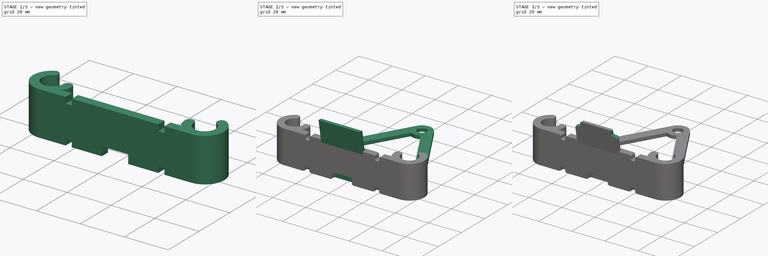
[diagram: build sequence overview — one tinted view per stage of 3, left to right]
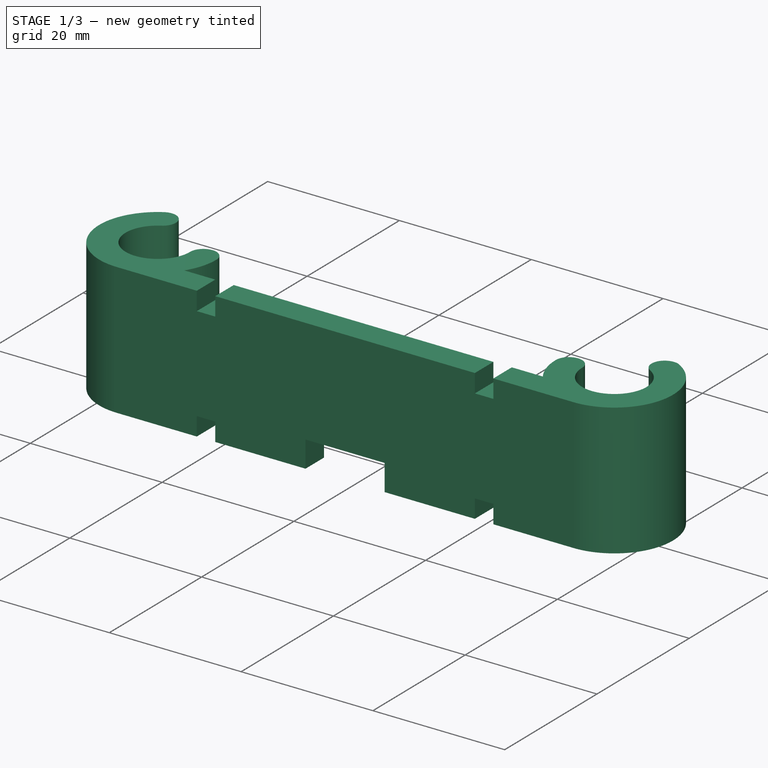
[diagram: stage 1 of 3 — iso view after this stage's code; geometry added in this stage tinted green]
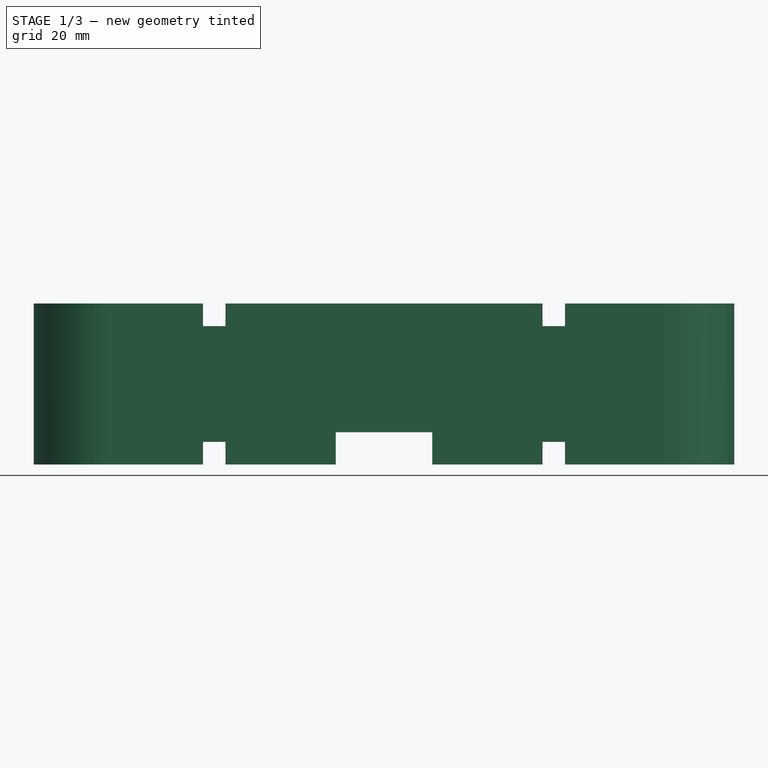
[diagram: stage 1 of 3 — front view after this stage's code; geometry added in this stage tinted green]
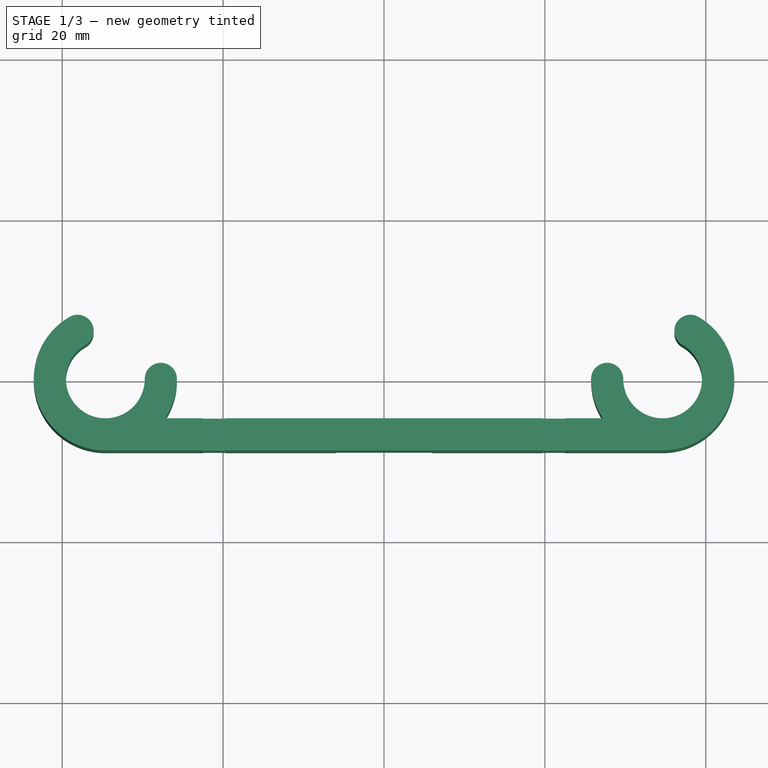
[diagram: stage 1 of 3 — top view after this stage's code; geometry added in this stage tinted green]
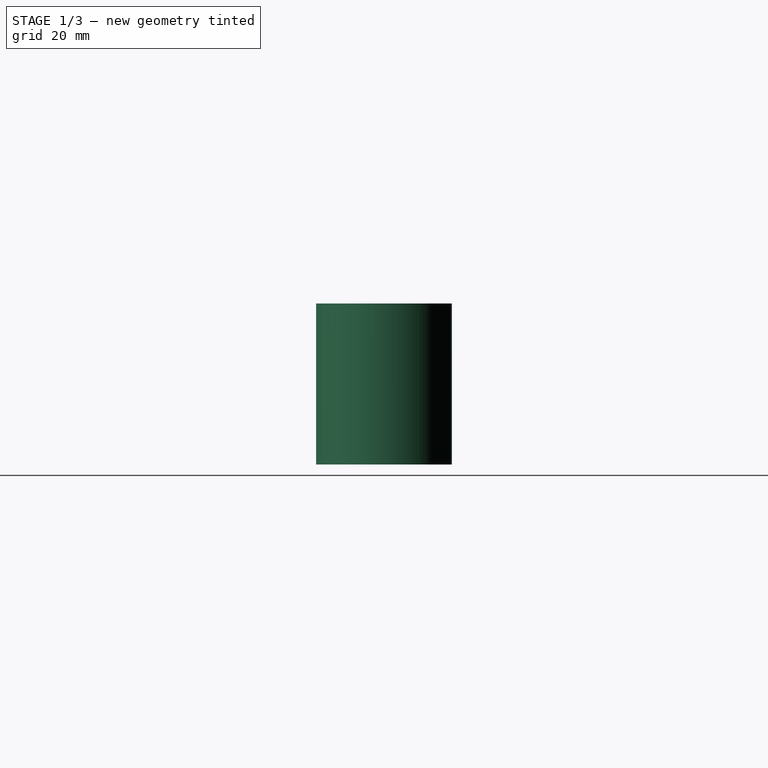
[diagram: stage 1 of 3 — right view after this stage's code; geometry added in this stage tinted green]
FCSTD DOCUMENT  (FreeCAD 0.21R33771 (Git))
Label: sensor_head
License: All rights reserved
LicenseURL: https://en.wikipedia.org/wiki/All_rights_reserved
objects: Sketcher::SketchObject×5, PartDesign::Pad×3, PartDesign::Pocket×2, PartDesign::Fillet×2, PartDesign::Body×2, App::Part×1
note: 21 computed .brp shape members not serialized (recipe doc carries the construction recipe); baked Part::Feature solids carry a one-line shape summary decoded from their .brp

FEATURE [PartDesign::Body] Body
  Group = -> [Sketch,Pad,Sketch001,Pad001,Sketch003,Pocket,Fillet]
  Origin = -> Origin001
  Tip = -> Fillet
FEATURE [Sketcher::SketchObject] Sketch004
  FullyConstrained = true
  MapMode = 5
  Support = -> [XY_Plane002]
  sketch-geometry (18):
    g0: Circle CenterX=0 CenterY=0 CenterZ=0 NormalX=0 NormalY=0 NormalZ=1 AngleXU=0 Radius=40
    g1: ArcOfCircle CenterX=-34.641 CenterY=-20 CenterZ=0 NormalX=0 NormalY=0 NormalZ=1 AngleXU=0 Radius=4.9 StartAngle=2.0944 EndAngle=6.28319
    g2: ArcOfCircle CenterX=34.641 CenterY=-20 CenterZ=0 NormalX=0 NormalY=0 NormalZ=1 AngleXU=0 Radius=4.9 StartAngle=3.14159 EndAngle=7.33038
    g3: ArcOfCircle CenterX=34.641 CenterY=-20 CenterZ=0 NormalX=0 NormalY=0 NormalZ=1 AngleXU=0 Radius=8.9 StartAngle=3.14159 EndAngle=3.72463
    g4: ArcOfCircle CenterX=-34.641 CenterY=-20 CenterZ=0 NormalX=0 NormalY=0 NormalZ=1 AngleXU=0 Radius=8.9 StartAngle=2.0944 EndAngle=4.71239
    g5: LineSegment StartX=-34.641 StartY=-20 StartZ=0 EndX=-44.641 EndY=-2.67949 EndZ=0
    g6: LineSegment StartX=34.641 StartY=-20 StartZ=0 EndX=44.641 EndY=-2.67949 EndZ=0
    g7: LineSegment StartX=-34.641 StartY=-20 StartZ=0 EndX=34.641 EndY=-20 EndZ=0
    g8: LineSegment StartX=34.641 StartY=-20 StartZ=0 EndX=0 EndY=40 EndZ=0
    g9: LineSegment StartX=0 StartY=40 StartZ=0 EndX=-34.641 EndY=-20 EndZ=0
    g10: ArcOfCircle CenterX=38.091 CenterY=-14.0244 CenterZ=0 NormalX=0 NormalY=0 NormalZ=1 AngleXU=0 Radius=2 StartAngle=1.0472 EndAngle=4.18879
    g11: ArcOfCircle CenterX=27.741 CenterY=-20 CenterZ=0 NormalX=0 NormalY=0 NormalZ=1 AngleXU=0 Radius=2 StartAngle=7e-16 EndAngle=3.14159
    g12: ArcOfCircle CenterX=-27.741 CenterY=-20 CenterZ=0 NormalX=0 NormalY=0 NormalZ=1 AngleXU=0 Radius=2 StartAngle=-9e-16 EndAngle=3.14159
    g13: ArcOfCircle CenterX=-38.091 CenterY=-14.0244 CenterZ=0 NormalX=0 NormalY=0 NormalZ=1 AngleXU=0 Radius=2 StartAngle=5.23599 EndAngle=8.37758
    g14: LineSegment StartX=-34.641 StartY=-28.9 StartZ=0 EndX=34.641 EndY=-28.9 EndZ=0
    g15: LineSegment StartX=-27.2113 StartY=-24.9 StartZ=0 EndX=27.2113 EndY=-24.9 EndZ=0
    g16: ArcOfCircle CenterX=-34.641 CenterY=-20 CenterZ=0 NormalX=0 NormalY=0 NormalZ=1 AngleXU=0 Radius=8.9 StartAngle=5.70015 EndAngle=6.28319
    g17: ArcOfCircle CenterX=34.641 CenterY=-20 CenterZ=0 NormalX=0 NormalY=0 NormalZ=1 AngleXU=0 Radius=8.9 StartAngle=4.71239 EndAngle=7.33038
  constraints (62):
    c: Coincident(g0,g-1)
    c: Diameter(g0) = 80
    c: PointOnObject(g2,g0)
    c: Diameter(g1) = 9.8
    c: Diameter(g2) = 9.8
    c: Diameter(g3) = 17.8
    c: Diameter(g4) = 17.8
    c: Coincident(g7,g1)
    c: Coincident(g7,g2)
    c: Horizontal(g7)
    c: Coincident(g8,g2)
    c: PointOnObject(g8,g0)
    c: Coincident(g9,g8)
    c: Coincident(g9,g1)
    c: PointOnObject(g8,g-2)
    c: Angle(g9,g8) = 1.0472
    c: PointOnObject(g1,g0)
    c: Coincident(g1,g4)
    c: Coincident(g3,g2)
    c: Angle(g6,g7) = 2.0944
    c: Angle(g7,g5) = 2.0944
    c: Coincident(g2,g6)
    c: Coincident(g5,g1)
    c: Distance(g5) = 20
    c: Distance(g6) = 20
    c: PointOnObject(g10,g6)
    c: PointOnObject(g11,g7)
    c: PointOnObject(g12,g7)
    c: PointOnObject(g13,g5)
    c: Coincident(g13,g4)
    c: Coincident(g13,g1)
    c: PointOnObject(g4,g5)
    c: Coincident(g12,g1)
    c: PointOnObject(g1,g7)
    c: Coincident(g16,g12)
    c: PointOnObject(g16,g7)
    c: PointOnObject(g1,g5)
    c: PointOnObject(g2,g7)
    c: PointOnObject(g2,g6)
    c: PointOnObject(g17,g6)
    c: PointOnObject(g3,g7)
    c: PointOnObject(g11,g7)
    c: PointOnObject(g11,g7)
    c: PointOnObject(g10,g6)
    c: PointOnObject(g10,g6)
    c: Tangent(g10,g2)
    c: Tangent(g10,g3)
    c: Tangent(g11,g3)
    c: Tangent(g11,g2)
    c: PointOnObject(g14,g3)
    c: Horizontal(g14)
    c: Tangent(g14,g3)
    c: Horizontal(g15)
    c: DistanceY(g14,g15) = 4
    c: Equal(g4,g16)
    c: Coincident(g16,g15)
    c: Coincident(g4,g16)
    c: Equal(g3,g17)
    c: Coincident(g3,g15)
    c: Coincident(g3,g17)
    c: Coincident(g4,g14)
    c: PointOnObject(g17,g14)
FEATURE [PartDesign::Pad] Pad002
  Direction = (0,0,1)
  Length = 20
  Length2 = 10
  Profile = -> Sketch004
  ReferenceAxis = -> Sketch004 [N_Axis]
  Type = 0
FEATURE [Sketcher::SketchObject] Sketch005
  ExternalGeometry = -> [Pad002]
  FullyConstrained = true
  MapMode = 5
  Placement = pos=(0,-28.9,0) rot=(1,0,0;1.5708rad)
  Support = -> [Pad002]
  sketch-geometry (30):
    g0: LineSegment StartX=-22.5 StartY=20 StartZ=0 EndX=22.5 EndY=20 EndZ=0
    g1: LineSegment StartX=22.5 StartY=20 StartZ=0 EndX=22.5 EndY=0 EndZ=0
    g2: LineSegment StartX=22.5 StartY=0 StartZ=0 EndX=-22.5 EndY=0 EndZ=0
    g3: LineSegment StartX=-22.5 StartY=0 StartZ=0 EndX=-22.5 EndY=20 EndZ=0
    g4: LineSegment StartX=-34.641 StartY=20 StartZ=0 EndX=34.641 EndY=0 EndZ=0
    g5: LineSegment StartX=-22.5 StartY=20 StartZ=0 EndX=22.5 EndY=0 EndZ=0
    g6: LineSegment StartX=34.641 StartY=20 StartZ=0 EndX=-34.641 EndY=0 EndZ=0
    g7: GeomPoint X=1.89012e-05 Y=10 Z=0
    g8: LineSegment StartX=-22.5 StartY=0 StartZ=0 EndX=22.5 EndY=20 EndZ=0
    g9: GeomPoint X=1.89012e-05 Y=10 Z=0
    g10: LineSegment StartX=-22.5 StartY=0 StartZ=0 EndX=-19.7 EndY=0 EndZ=0
    g11: LineSegment StartX=-19.7 StartY=0 StartZ=0 EndX=-19.7 EndY=2.8 EndZ=0
    g12: LineSegment StartX=-19.7 StartY=2.8 StartZ=0 EndX=-22.5 EndY=2.8 EndZ=0
    g13: LineSegment StartX=-22.5 StartY=2.8 StartZ=0 EndX=-22.5 EndY=0 EndZ=0
    g14: LineSegment StartX=22.5 StartY=0 StartZ=0 EndX=19.7 EndY=0 EndZ=0
    g15: LineSegment StartX=19.7 StartY=0 StartZ=0 EndX=19.7 EndY=2.8 EndZ=0
    g16: LineSegment StartX=19.7 StartY=2.8 StartZ=0 EndX=22.5 EndY=2.8 EndZ=0
    g17: LineSegment StartX=22.5 StartY=2.8 StartZ=0 EndX=22.5 EndY=0 EndZ=0
    g18: LineSegment StartX=22.5 StartY=20 StartZ=0 EndX=19.7 EndY=20 EndZ=0
    g19: LineSegment StartX=19.7 StartY=20 StartZ=0 EndX=19.7 EndY=17.2 EndZ=0
    g20: LineSegment StartX=19.7 StartY=17.2 StartZ=0 EndX=22.5 EndY=17.2 EndZ=0
    g21: LineSegment StartX=22.5 StartY=17.2 StartZ=0 EndX=22.5 EndY=20 EndZ=0
    g22: LineSegment StartX=-22.5 StartY=20 StartZ=0 EndX=-19.7 EndY=20 EndZ=0
    g23: LineSegment StartX=-19.7 StartY=20 StartZ=0 EndX=-19.7 EndY=17.2 EndZ=0
    g24: LineSegment StartX=-19.7 StartY=17.2 StartZ=0 EndX=-22.5 EndY=17.2 EndZ=0
    g25: LineSegment StartX=-22.5 StartY=17.2 StartZ=0 EndX=-22.5 EndY=20 EndZ=0
    g26: LineSegment StartX=-5.99998 StartY=0 StartZ=0 EndX=6.00002 EndY=0 EndZ=0
    g27: LineSegment StartX=6.00002 StartY=0 StartZ=0 EndX=6.00002 EndY=4 EndZ=0
    g28: LineSegment StartX=6.00002 StartY=4 StartZ=0 EndX=-5.99998 EndY=4 EndZ=0
    g29: LineSegment StartX=-5.99998 StartY=4 StartZ=0 EndX=-5.99998 EndY=0 EndZ=0
  constraints (80):
    c: Coincident(g0,g1)
    c: Coincident(g1,g2)
    c: Coincident(g2,g3)
    c: Coincident(g3,g0)
    c: Horizontal(g0)
    c: Horizontal(g2)
    c: Vertical(g1)
    c: Vertical(g3)
    c: PointOnObject(g0,g-3)
    c: PointOnObject(g1,g-4)
    c: DistanceX(g0,g0) = 45
    c: Coincident(g4,g-3)
    c: Coincident(g4,g-4)
    c: Coincident(g5,g0)
    c: Coincident(g5,g1)
    c: Coincident(g6,g-3)
    c: Coincident(g6,g-4)
    c: PointOnObject(g7,g4)
    c: PointOnObject(g7,g6)
    c: Coincident(g8,g2)
    c: Coincident(g8,g0)
    c: PointOnObject(g9,g8)
    c: PointOnObject(g9,g5)
    c: Vertical(g9,g7)
    c: Coincident(g10,g11)
    c: Coincident(g11,g12)
    c: Coincident(g12,g13)
    c: Coincident(g13,g10)
    c: Horizontal(g10)
    c: Horizontal(g12)
    c: Vertical(g11)
    c: Vertical(g13)
    c: Coincident(g10,g2)
    c: Coincident(g14,g15)
    c: Coincident(g15,g16)
    c: Coincident(g16,g17)
    c: Coincident(g17,g14)
    c: Horizontal(g14)
    c: Horizontal(g16)
    c: Vertical(g15)
    c: Vertical(g17)
    c: Coincident(g14,g1)
    c: Coincident(g18,g19)
    c: Coincident(g19,g20)
    c: Coincident(g20,g21)
    c: Coincident(g21,g18)
    c: Horizontal(g18)
    c: Horizontal(g20)
    c: Vertical(g19)
    c: Vertical(g21)
    c: Coincident(g18,g0)
    c: Coincident(g22,g23)
    c: Coincident(g23,g24)
    c: Coincident(g24,g25)
    c: Coincident(g25,g22)
    c: Horizontal(g22)
    c: Horizontal(g24)
    c: Vertical(g23)
    c: Vertical(g25)
    c: Coincident(g22,g0)
    c: Coincident(g26,g27)
    c: Coincident(g27,g28)
    c: Coincident(g28,g29)
    c: Coincident(g29,g26)
    c: Horizontal(g26)
    c: Horizontal(g28)
    c: Vertical(g27)
    c: Vertical(g29)
    c: PointOnObject(g26,g2)
    c: Vertical(g11,g23)
    c: Vertical(g19,g15)
    c: Horizontal(g23,g19)
    c: Horizontal(g15,g11)
    c: DistanceX(g12,g12) = 2.8
    c: DistanceX(g20,g20) = 2.8
    c: DistanceY(g19,g19) = 2.8
    c: DistanceY(g15,g15) = 2.8
    c: DistanceX(g28,g28) = 12
    c: DistanceX(g26,g14) = 16.5
    c: DistanceY(g27,g27) = 4
FEATURE [PartDesign::Pocket] Pocket001
  BaseFeature = -> Pad002
  Direction = (0,1,-2e-16)
  Length = 5
  Length2 = 5
  Profile = -> Sketch005
  ReferenceAxis = -> Sketch005 [N_Axis]
  Type = 2
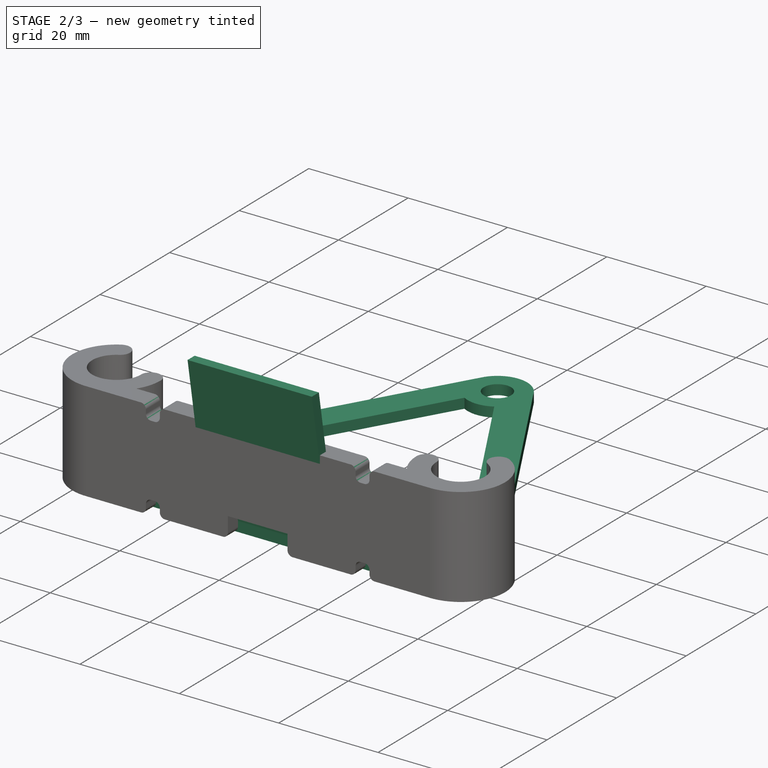
[diagram: stage 2 of 3 — iso view after this stage's code; geometry added in this stage tinted green]
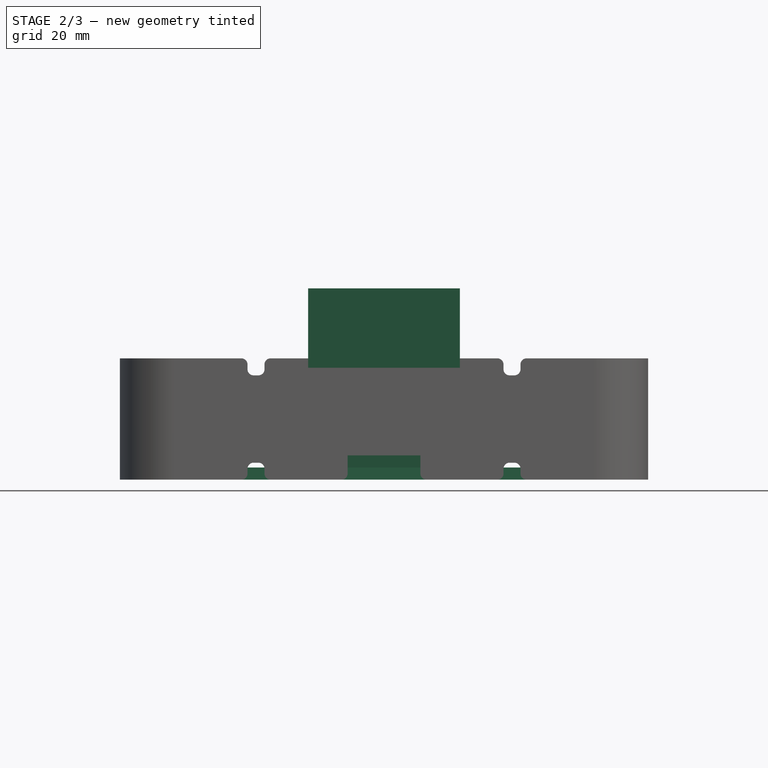
[diagram: stage 2 of 3 — front view after this stage's code; geometry added in this stage tinted green]
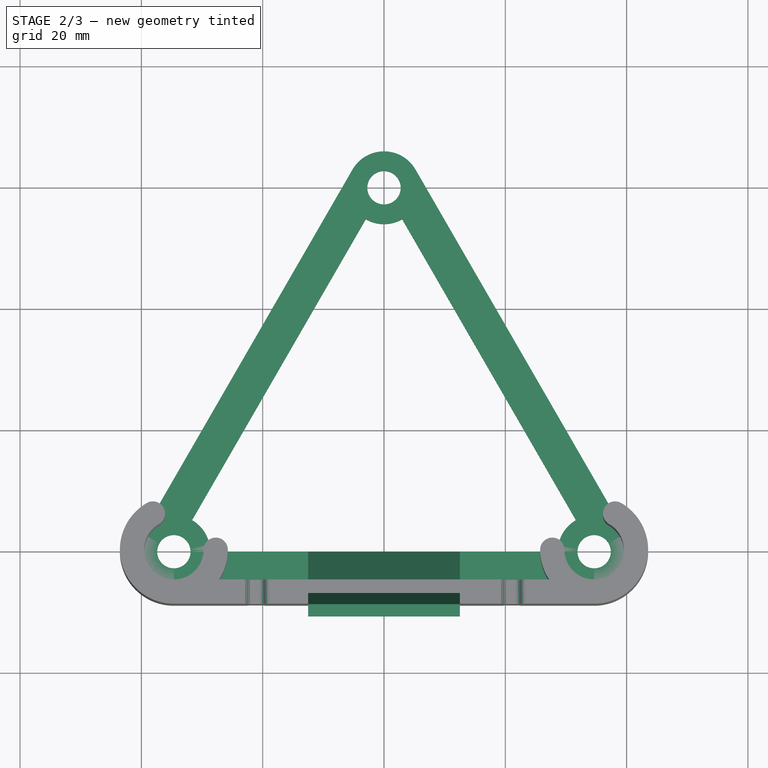
[diagram: stage 2 of 3 — top view after this stage's code; geometry added in this stage tinted green]
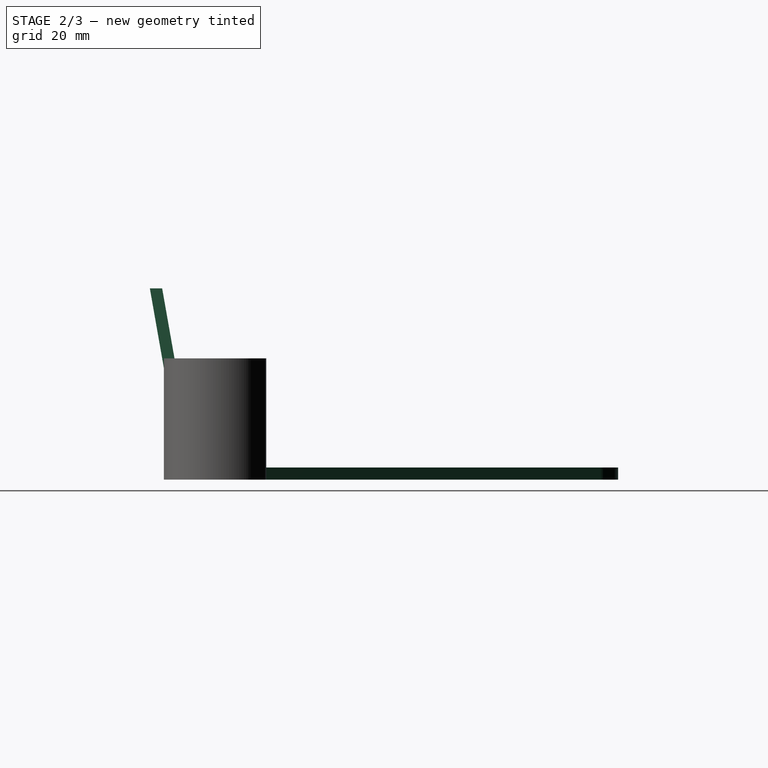
[diagram: stage 2 of 3 — right view after this stage's code; geometry added in this stage tinted green]
FEATURE [Sketcher::SketchObject] Sketch
  FullyConstrained = true
  MapMode = 5
  Support = -> [XY_Plane001]
  sketch-geometry (19):
    g0: Circle CenterX=0 CenterY=0 CenterZ=0 NormalX=0 NormalY=0 NormalZ=1 AngleXU=0 Radius=40
    g1: LineSegment StartX=0 StartY=40 StartZ=0 EndX=-34.641 EndY=-20 EndZ=0
    g2: LineSegment StartX=-34.641 StartY=-20 StartZ=0 EndX=34.641 EndY=-20 EndZ=0
    g3: LineSegment StartX=34.641 StartY=-20 StartZ=0 EndX=0 EndY=40 EndZ=0
    g4: Circle CenterX=0 CenterY=40 CenterZ=0 NormalX=0 NormalY=0 NormalZ=1 AngleXU=0 Radius=2.75
    g5: Circle CenterX=-34.641 CenterY=-20 CenterZ=0 NormalX=0 NormalY=0 NormalZ=1 AngleXU=0 Radius=2.75
    g6: Circle CenterX=34.641 CenterY=-20 CenterZ=0 NormalX=0 NormalY=0 NormalZ=1 AngleXU=0 Radius=2.75
    g7: ArcOfCircle CenterX=0 CenterY=40 CenterZ=0 NormalX=0 NormalY=0 NormalZ=1 AngleXU=0 Radius=6 StartAngle=0.523599 EndAngle=2.61799
    g8: ArcOfCircle CenterX=-34.641 CenterY=-20 CenterZ=0 NormalX=0 NormalY=0 NormalZ=1 AngleXU=0 Radius=6 StartAngle=0 EndAngle=1.0472
    g9: ArcOfCircle CenterX=34.641 CenterY=-20 CenterZ=0 NormalX=0 NormalY=0 NormalZ=1 AngleXU=0 Radius=6 StartAngle=2.0944 EndAngle=3.14159
    g10: LineSegment StartX=-39.8372 StartY=-17 StartZ=0 EndX=-5.19615 EndY=43 EndZ=0
    g11: LineSegment StartX=5.19615 StartY=43 StartZ=0 EndX=39.8372 EndY=-17 EndZ=0
    g12: LineSegment StartX=34.641 StartY=-26 StartZ=0 EndX=-34.641 EndY=-26 EndZ=0
    g13: LineSegment StartX=-31.641 StartY=-14.8038 StartZ=0 EndX=-3 EndY=34.8038 EndZ=0
    g14: LineSegment StartX=3 StartY=34.8038 StartZ=0 EndX=31.641 EndY=-14.8038 EndZ=0
    g15: LineSegment StartX=28.641 StartY=-20 StartZ=0 EndX=-28.641 EndY=-20 EndZ=0
    g16: ArcOfCircle CenterX=-34.641 CenterY=-20 CenterZ=0 NormalX=0 NormalY=0 NormalZ=1 AngleXU=0 Radius=6 StartAngle=2.61799 EndAngle=4.71239
    g17: ArcOfCircle CenterX=0 CenterY=40 CenterZ=0 NormalX=0 NormalY=0 NormalZ=1 AngleXU=0 Radius=6 StartAngle=4.18879 EndAngle=5.23599
    g18: ArcOfCircle CenterX=34.641 CenterY=-20 CenterZ=0 NormalX=0 NormalY=0 NormalZ=1 AngleXU=0 Radius=6 StartAngle=4.71239 EndAngle=6.80678
  constraints (49):
    c: Coincident(g0,g-1)
    c: Diameter(g0) = 80
    c: PointOnObject(g1,g0)
    c: PointOnObject(g1,g0)
    c: Coincident(g2,g1)
    c: PointOnObject(g2,g0)
    c: Horizontal(g2)
    c: Coincident(g3,g2)
    c: Coincident(g3,g1)
    c: PointOnObject(g1,g-2)
    c: Angle(g1,g3) = 1.0472
    c: Coincident(g4,g1)
    c: Coincident(g5,g1)
    c: Coincident(g6,g2)
    c: Diameter(g4) = 5.5
    c: Diameter(g6) = 5.5
    c: Diameter(g5) = 5.5
    c: Coincident(g7,g4)
    c: Diameter(g7) = 12
    c: Coincident(g8,g5)
    c: Coincident(g9,g6)
    c: Diameter(g8) = 12
    c: Diameter(g9) = 12
    c: PointOnObject(g13,g1)
    c: PointOnObject(g14,g3)
    c: PointOnObject(g15,g8)
    c: Horizontal(g15)
    c: PointOnObject(g15,g2)
    c: PointOnObject(g14,g3)
    c: PointOnObject(g13,g7)
    c: PointOnObject(g13,g1)
    c: PointOnObject(g8,g2)
    c: Equal(g8,g16)
    c: Tangent(g16,g10) = 1.5708
    c: Coincident(g8,g16)
    c: Coincident(g8,g13)
    c: Tangent(g16,g12) = 1.5708
    c: Tangent(g7,g11) = 1.5708
    c: Coincident(g17,g14)
    c: Equal(g7,g17)
    c: Tangent(g7,g10) = 1.5708
    c: Coincident(g7,g17)
    c: PointOnObject(g17,g1)
    c: Equal(g9,g18)
    c: Coincident(g9,g15)
    c: Coincident(g9,g18)
    c: Coincident(g9,g14)
    c: Tangent(g18,g11) = 1.5708
    c: Tangent(g12,g18) = 1.5708
FEATURE [PartDesign::Pad] Pad
  Direction = (0,0,1)
  Length = 2
  Length2 = 10
  Profile = -> Sketch
  ReferenceAxis = -> Sketch [N_Axis]
  Type = 0
FEATURE [Sketcher::SketchObject] Sketch001
  ExternalGeometry = -> [Pad]
  FullyConstrained = true
  MapMode = 5
  Placement = pos=(0,0,0) rot=(0.57735,0.57735,0.57735;2.0944rad)
  Support = -> [YZ_Plane001]
  sketch-geometry (7):
    g0: LineSegment StartX=-26 StartY=2 StartZ=0 EndX=-31.2094 EndY=31.5442 EndZ=0
    g1: LineSegment StartX=-26 StartY=2 StartZ=0 EndX=-20 EndY=2 EndZ=0
    g2: LineSegment StartX=-31.2094 StartY=31.5442 StartZ=0 EndX=-29.1786 EndY=31.5442 EndZ=0
    g3: LineSegment StartX=-29.1786 StartY=31.5442 StartZ=0 EndX=-23.9691 EndY=2 EndZ=0
    g4: LineSegment StartX=-29.1786 StartY=31.5442 StartZ=0 EndX=-24.8188 EndY=6.81884 EndZ=0
    g5: LineSegment StartX=-24.8188 StartY=6.81884 StartZ=0 EndX=-20 EndY=2 EndZ=0
    g6: LineSegment StartX=-26 StartY=2 StartZ=0 EndX=-20 EndY=2 EndZ=0
  constraints (18):
    c: Coincident(g0,g-4)
    c: Coincident(g1,g0)
    c: Coincident(g1,g-3)
    c: Coincident(g2,g0)
    c: Horizontal(g2)
    c: Coincident(g3,g2)
    c: PointOnObject(g3,g1)
    c: Coincident(g4,g2)
    c: PointOnObject(g4,g3)
    c: Coincident(g5,g4)
    c: Coincident(g5,g1)
    c: Parallel(g0,g3)
    c: Angle(g1,g0) = 1.74533
    c: Distance(g2,g0) = 2
    c: Angle(g5,g1) = 0.785398
    c: Distance(g0) = 30
    c: Coincident(g6,g0)
    c: Coincident(g6,g5)
FEATURE [PartDesign::Pad] Pad001
  BaseFeature = -> Pad
  Direction = (1,-2e-16,3e-16)
  Length = 12.5
  Length2 = 12.5
  Profile = -> Sketch001
  ReferenceAxis = -> Sketch001 [N_Axis]
  Type = 4
FEATURE [PartDesign::Fillet] Fillet001
  Base = -> Pocket001 [Edge66,Edge19,Edge93,Edge92,Edge89,Edge84,Edge91,Edge90,Edge67,Edge68,Edge65,Edge14,Edge74,Edge73,Edge75,Edge76,Edge72,Edge69]
  BaseFeature = -> Pocket001
  Radius = 1
  SupportTransform = false
  UseAllEdges = false
FEATURE [PartDesign::Body] Body001
  Group = -> [Sketch004,Pad002,Sketch005,Pocket001,Fillet001]
  Origin = -> Origin002
  Tip = -> Fillet001
FEATURE [App::Part] Part
  Group = -> [Body,Body001]
  Origin = -> Origin
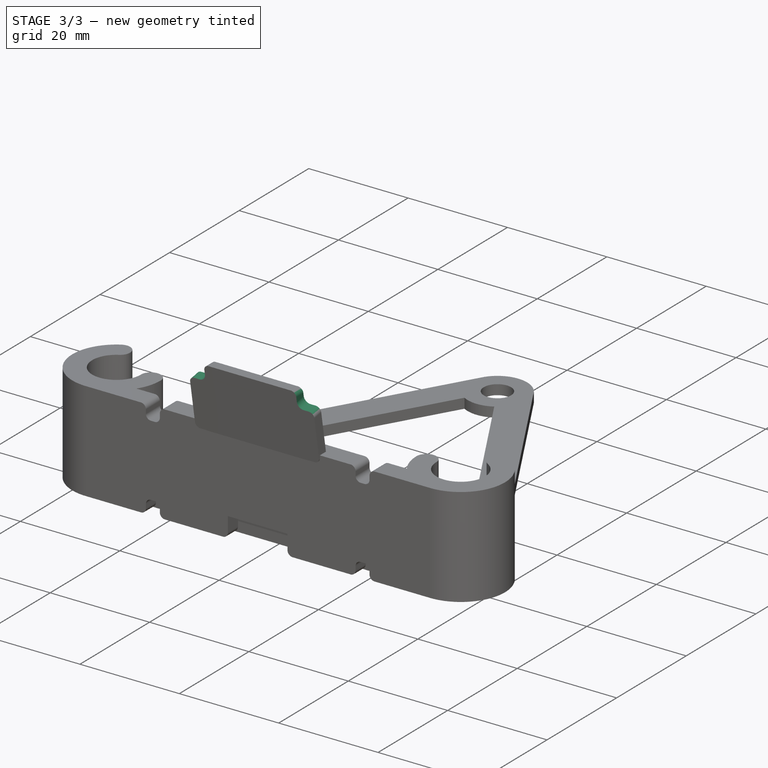
[diagram: stage 3 of 3 — iso view after this stage's code; geometry added in this stage tinted green]
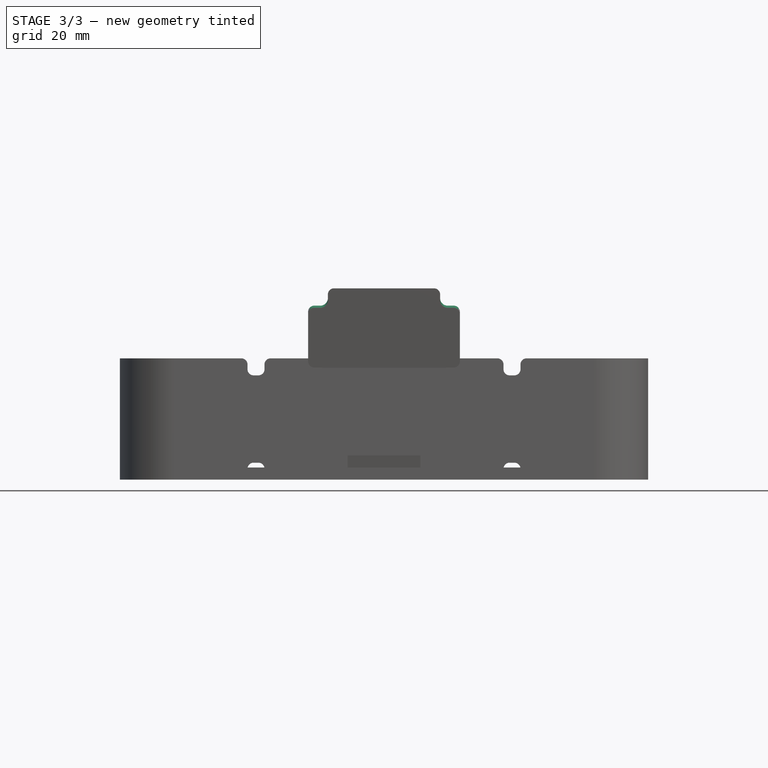
[diagram: stage 3 of 3 — front view after this stage's code; geometry added in this stage tinted green]
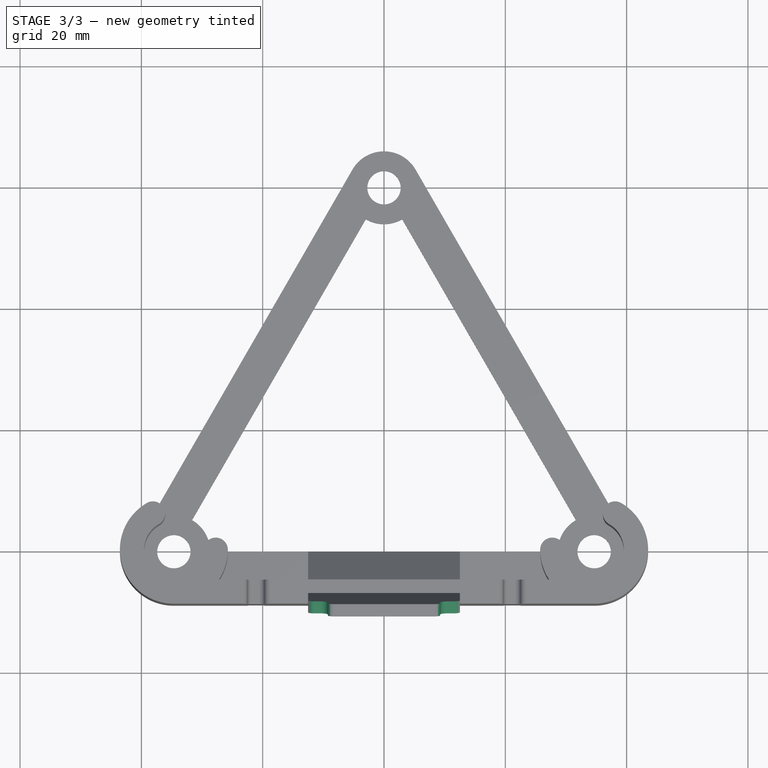
[diagram: stage 3 of 3 — top view after this stage's code; geometry added in this stage tinted green]
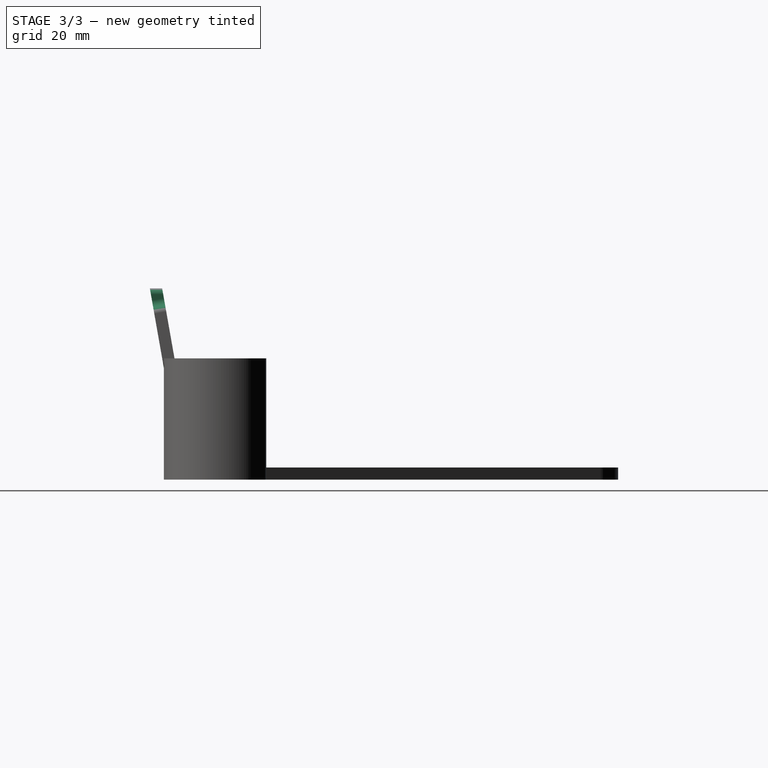
[diagram: stage 3 of 3 — right view after this stage's code; geometry added in this stage tinted green]
FEATURE [Sketcher::SketchObject] Sketch003
  ExternalGeometry = -> [Pad001]
  FullyConstrained = true
  MapMode = 5
  Placement = pos=(-4.3e-15,-24.874,-4.38595) rot=(1,0,0;1.74533rad)
  Support = -> [Pad001]
  sketch-geometry (18):
    g0: ArcOfCircle CenterX=-10.5 CenterY=34.4845 CenterZ=0 NormalX=0 NormalY=0 NormalZ=1 AngleXU=0 Radius=1.25 StartAngle=4.71239 EndAngle=6.28319
    g1: ArcOfCircle CenterX=10.5 CenterY=34.4845 CenterZ=0 NormalX=0 NormalY=0 NormalZ=1 AngleXU=0 Radius=1.25 StartAngle=3.14159 EndAngle=4.71239
    g2: ArcOfCircle CenterX=10.5 CenterY=21.9845 CenterZ=0 NormalX=0 NormalY=0 NormalZ=1 AngleXU=0 Radius=1.25 StartAngle=1.5708 EndAngle=4.71239
    g3: ArcOfCircle CenterX=-10.5 CenterY=21.9845 CenterZ=0 NormalX=0 NormalY=0 NormalZ=1 AngleXU=0 Radius=1.25 StartAngle=4.71239 EndAngle=7.85398
    g4: LineSegment StartX=-12.5 StartY=36.4845 StartZ=0 EndX=-9.25 EndY=36.4845 EndZ=0
    g5: LineSegment StartX=-9.25 StartY=36.4845 StartZ=0 EndX=-9.25 EndY=34.4845 EndZ=0
    g6: LineSegment StartX=-10.5 StartY=33.2345 StartZ=0 EndX=-12.5 EndY=33.2345 EndZ=0
    g7: LineSegment StartX=-12.5 StartY=33.2345 StartZ=0 EndX=-12.5 EndY=36.4845 EndZ=0
    g8: LineSegment StartX=12.5 StartY=36.4845 StartZ=0 EndX=9.25 EndY=36.4845 EndZ=0
    g9: LineSegment StartX=9.25 StartY=36.4845 StartZ=0 EndX=9.25 EndY=34.4845 EndZ=0
    g10: LineSegment StartX=10.5 StartY=33.2345 StartZ=0 EndX=12.5 EndY=33.2345 EndZ=0
    g11: LineSegment StartX=12.5 StartY=33.2345 StartZ=0 EndX=12.5 EndY=36.4845 EndZ=0
    g12: LineSegment StartX=10.5 StartY=23.2345 StartZ=0 EndX=12.5 EndY=23.2345 EndZ=0
    g13: LineSegment StartX=10.5 StartY=20.7345 StartZ=0 EndX=12.5 EndY=20.7345 EndZ=0
    g14: LineSegment StartX=12.5 StartY=23.2345 StartZ=0 EndX=12.5 EndY=20.7345 EndZ=0
    g15: LineSegment StartX=-10.5 StartY=23.2345 StartZ=0 EndX=-12.5 EndY=23.2345 EndZ=0
    g16: LineSegment StartX=-10.5 StartY=20.7345 StartZ=0 EndX=-12.5 EndY=20.7345 EndZ=0
    g17: LineSegment StartX=-12.5 StartY=20.7345 StartZ=0 EndX=-12.5 EndY=23.2345 EndZ=0
  constraints (49):
    c: Horizontal(g3,g2)
    c: Horizontal(g1,g0)
    c: Vertical(g0,g3)
    c: Vertical(g2,g1)
    c: Diameter(g0) = 2.5
    c: Diameter(g3) = 2.5
    c: Diameter(g2) = 2.5
    c: Diameter(g1) = 2.5
    c: DistanceX(g-5,g0) = 2
    c: DistanceX(g1,g-6) = 2
    c: DistanceY(g-3,g-3) = 0
    c: DistanceY(g0,g-5) = 2
    c: DistanceY(g3,g-5) = 14.5
    c: Coincident(g4,g5)
    c: Coincident(g6,g7)
    c: Coincident(g7,g4)
    c: Horizontal(g4)
    c: Horizontal(g6)
    c: Vertical(g5)
    c: Vertical(g7)
    c: Coincident(g4,g-5)
    c: Tangent(g0,g5) = 1.5708
    c: Tangent(g0,g6) = 1.5708
    c: Coincident(g8,g9)
    c: Coincident(g10,g11)
    c: Coincident(g11,g8)
    c: Horizontal(g8)
    c: Horizontal(g10)
    c: Vertical(g9)
    c: Vertical(g11)
    c: Coincident(g8,g-6)
    c: Tangent(g1,g10) = -1.5708
    c: Tangent(g1,g9) = -1.5708
    c: PointOnObject(g12,g-6)
    c: Horizontal(g12)
    c: PointOnObject(g13,g-6)
    c: Horizontal(g13)
    c: Coincident(g14,g12)
    c: Coincident(g14,g13)
    c: Tangent(g2,g13) = -1.5708
    c: Tangent(g2,g12) = 1.5708
    c: PointOnObject(g15,g-5)
    c: Horizontal(g15)
    c: PointOnObject(g16,g-5)
    c: Coincident(g17,g16)
    c: Coincident(g17,g15)
    c: Horizontal(g16)
    c: Tangent(g3,g15) = -1.5708
    c: Tangent(g3,g16) = 1.5708
FEATURE [PartDesign::Pocket] Pocket
  BaseFeature = -> Pad001
  Direction = (2e-16,0.984808,0.173648)
  Length = 5
  Length2 = 5
  Profile = -> Sketch003
  ReferenceAxis = -> Sketch003 [N_Axis]
  Type = 1
FEATURE [PartDesign::Fillet] Fillet
  Base = -> Pocket [Edge90,Edge88,Edge81,Edge95,Edge69,Edge72,Edge79,Edge98]
  BaseFeature = -> Pocket
  Radius = 1
  SupportTransform = false
  UseAllEdges = false
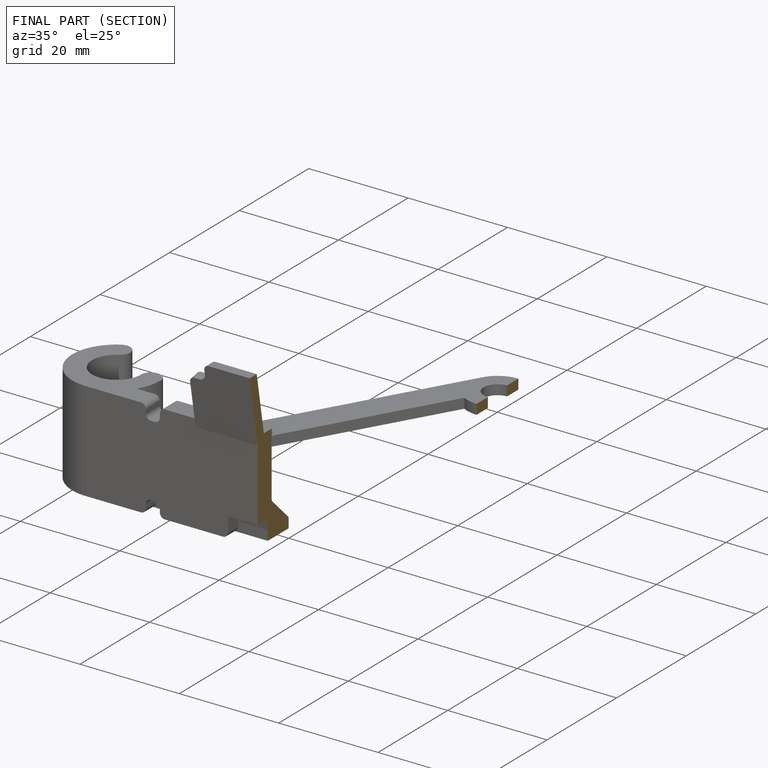
[diagram: finished part — half-section view (interior)]
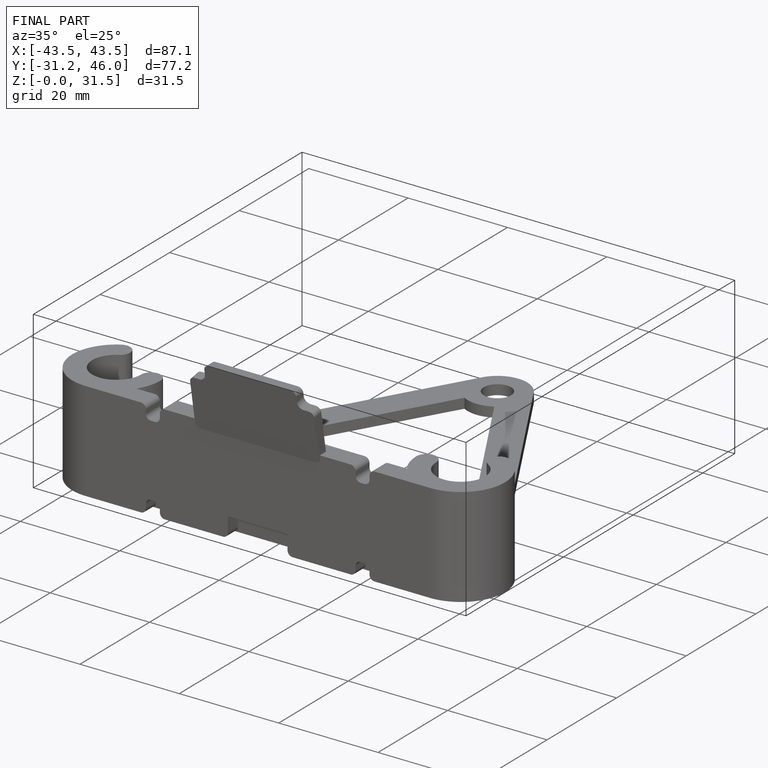
[diagram: finished part — iso view with bounding-box wireframe]
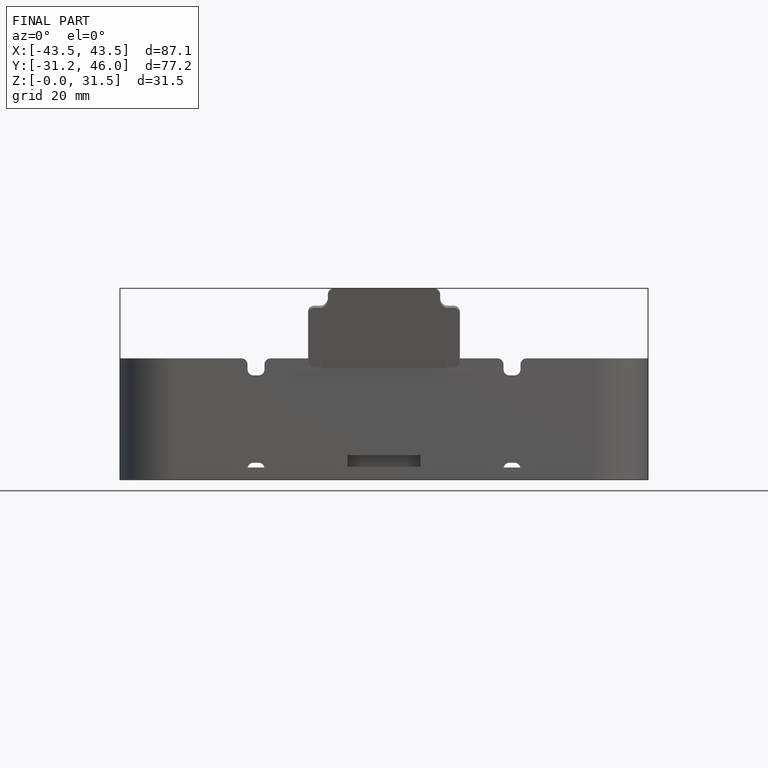
[diagram: finished part — front view with bounding-box wireframe]
